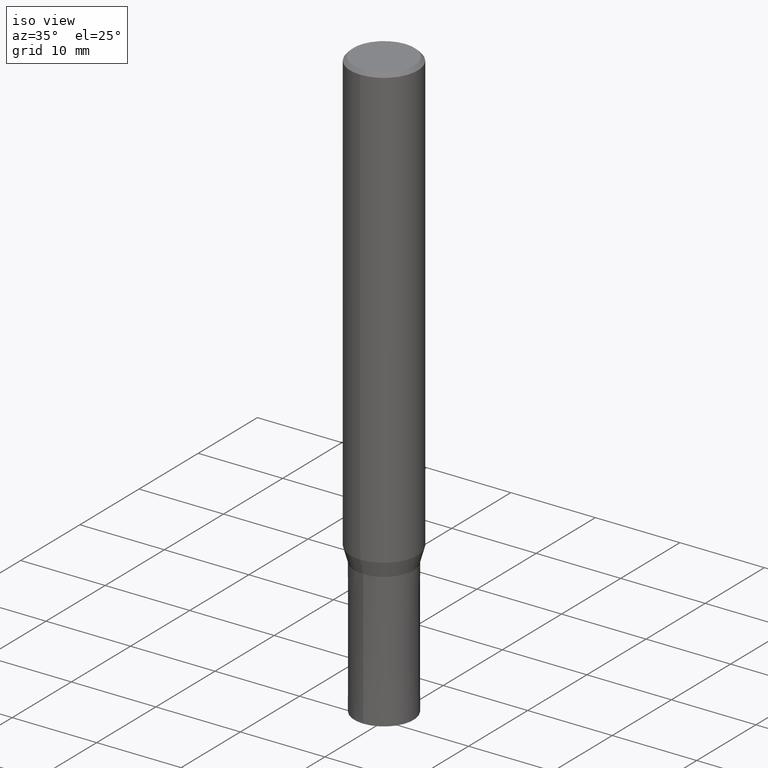
[diagram: clean part render]
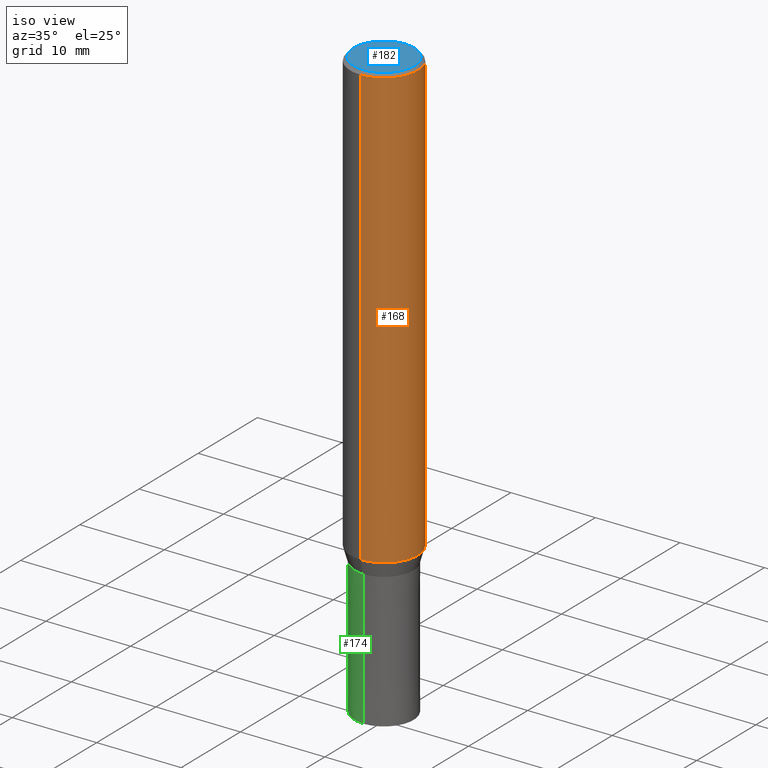
[diagram: same view with three faces highlighted in distinct colors, each labeled with its STEP entity id]
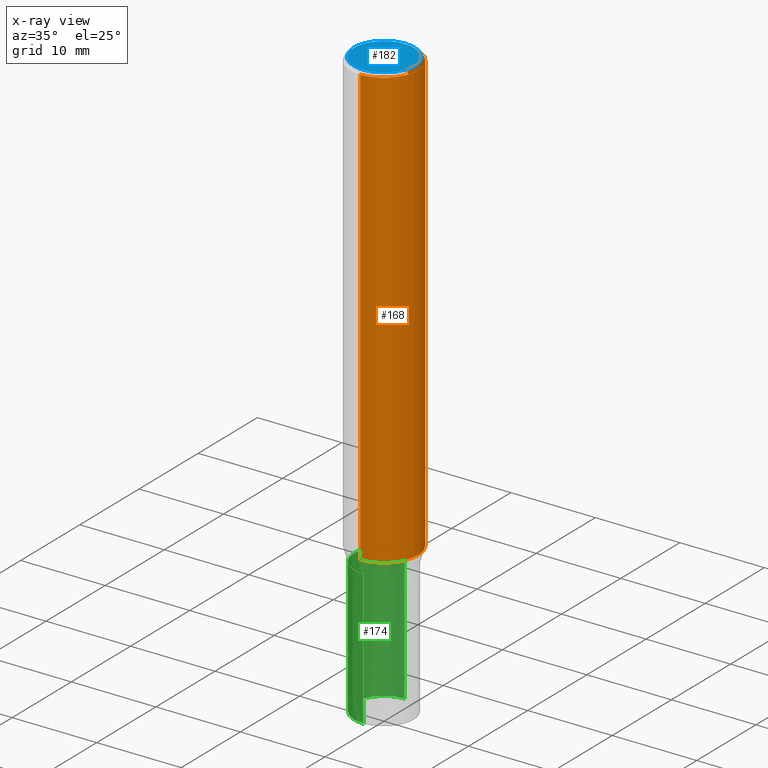
[diagram: x-ray of the same camera — body ghosted, the three highlighted faces saturated]
A machine part, iso view with three faces highlighted in distinct colors.
The next image is the same camera in x-ray (body ghosted, the three faces saturated) — at least one of them is partly hidden behind the body in this view.
Their STEP definitions:

[orange] entity #168 — the highlighted cylindrical surface (partial cylindrical patch) has radius 4 mm, axis along (-0, -0, 1).
#92=VERTEX_POINT('',#214);
#106=EDGE_CURVE('',#172,#120,#232,.T.);
#112=EDGE_CURVE('',#138,#172,#239,.T.);
#120=VERTEX_POINT('',#247);
#138=VERTEX_POINT('',#266);
#160=EDGE_CURVE('',#138,#92,#291,.T.);
#166=EDGE_CURVE('',#120,#92,#297,.T.);
#168=ADVANCED_FACE('',(#299),#300,.T.);
#172=VERTEX_POINT('',#304);
#214=CARTESIAN_POINT('',(4.89842541528951E-016,-4.0,-0.399999999999999));
#232=CIRCLE('',#365,4.0);
#239=LINE('',#374,#375);
#247=CARTESIAN_POINT('',(4.89842541528951E-016,-4.0,-52.256));
#266=CARTESIAN_POINT('',(0.0,4.0,-0.399999999999999));
#291=CIRCLE('',#442,4.0);
#297=LINE('',#450,#451);
#299=FACE_OUTER_BOUND('',#453,.T.);
#300=CYLINDRICAL_SURFACE('',#454,4.0);
#304=CARTESIAN_POINT('',(0.0,4.0,-52.256));
#365=AXIS2_PLACEMENT_3D('',#523,#524,#525);
#374=CARTESIAN_POINT('',(-4.89842541528951E-016,4.0,-26.328));
#375=VECTOR('',#535,1.0);
#442=AXIS2_PLACEMENT_3D('',#587,#588,#589);
#450=CARTESIAN_POINT('',(4.89842541528951E-016,-4.0,-26.328));
#451=VECTOR('',#593,1.0);
#453=EDGE_LOOP('',(#595,#596,#597,#598));
#454=AXIS2_PLACEMENT_3D('',#599,#600,#601);
#523=CARTESIAN_POINT('',(0.0,0.0,-52.256));
#524=DIRECTION('',(0.0,0.0,-1.0));
#525=DIRECTION('',(0.0,1.0,0.0));
#535=DIRECTION('',(0.0,0.0,-1.0));
#587=CARTESIAN_POINT('',(0.0,0.0,-0.399999999999999));
#588=DIRECTION('',(0.0,0.0,-1.0));
#589=DIRECTION('',(0.0,1.0,0.0));
#593=DIRECTION('',(-0.0,-0.0,1.0));
#595=ORIENTED_EDGE('',*,*,#112,.F.);
#596=ORIENTED_EDGE('',*,*,#160,.T.);
#597=ORIENTED_EDGE('',*,*,#166,.F.);
#598=ORIENTED_EDGE('',*,*,#106,.F.);
#599=CARTESIAN_POINT('',(0.0,0.0,-26.328));
#600=DIRECTION('',(-0.0,-0.0,1.0));
#601=DIRECTION('',(0.0,1.0,0.0));

[blue] entity #182 — the highlighted planar face has unit normal (-0, 0, 1).
#98=EDGE_CURVE('',#178,#162,#222,.T.);
#116=EDGE_CURVE('',#162,#178,#243,.T.);
#162=VERTEX_POINT('',#293);
#178=VERTEX_POINT('',#312);
#182=ADVANCED_FACE('',(#316),#317,.T.);
#222=CIRCLE('',#353,3.6);
#243=CIRCLE('',#380,3.6);
#293=CARTESIAN_POINT('',(4.40858287376056E-016,-3.6,0.0));
#312=CARTESIAN_POINT('',(0.0,3.6,0.0));
#316=FACE_OUTER_BOUND('',#472,.T.);
#317=PLANE('',#473);
#353=AXIS2_PLACEMENT_3D('',#501,#502,#503);
#380=AXIS2_PLACEMENT_3D('',#536,#537,#538);
#472=EDGE_LOOP('',(#618,#619));
#473=AXIS2_PLACEMENT_3D('',#620,#621,#622);
#501=CARTESIAN_POINT('',(0.0,0.0,0.0));
#502=DIRECTION('',(0.0,0.0,-1.0));
#503=DIRECTION('',(0.0,1.0,0.0));
#536=CARTESIAN_POINT('',(0.0,0.0,0.0));
#537=DIRECTION('',(0.0,0.0,-1.0));
#538=DIRECTION('',(0.0,1.0,0.0));
#618=ORIENTED_EDGE('',*,*,#98,.F.);
#619=ORIENTED_EDGE('',*,*,#116,.F.);
#620=CARTESIAN_POINT('',(0.0,1.8,0.0));
#621=DIRECTION('',(-0.0,0.0,1.0));
#622=DIRECTION('',(0.0,-1.0,0.0));

[green] entity #174 — the highlighted conical surface has half-angle 0 deg.
#114=VERTEX_POINT('',#241);
#126=EDGE_CURVE('',#114,#156,#253,.T.);
#142=EDGE_CURVE('',#180,#154,#270,.T.);
#148=EDGE_CURVE('',#114,#154,#277,.T.);
#154=VERTEX_POINT('',#285);
#156=VERTEX_POINT('',#287);
#158=EDGE_CURVE('',#156,#180,#289,.T.);
#174=ADVANCED_FACE('',(#306),#307,.T.);
#180=VERTEX_POINT('',#314);
#241=CARTESIAN_POINT('',(4.28612223837832E-016,-3.5,-70.0));
#253=LINE('',#395,#396);
#270=LINE('',#418,#419);
#277=CIRCLE('',#426,3.5);
#285=CARTESIAN_POINT('',(0.0,3.5,-70.0));
#287=CARTESIAN_POINT('',(4.28599977774294E-016,-3.4999,-54.0));
#289=CIRCLE('',#439,3.4999);
#306=FACE_OUTER_BOUND('',#462,.T.);
#307=CONICAL_SURFACE('',#463,3.49995,6.24999999993181E-006);
#314=CARTESIAN_POINT('',(0.0,3.4999,-54.0));
#395=CARTESIAN_POINT('',(4.28606100806063E-016,-3.49995,-62.0));
#396=VECTOR('',#546,1.0);
#418=CARTESIAN_POINT('',(-4.28606100806063E-016,3.49995,-62.0));
#419=VECTOR('',#557,1.0);
#426=AXIS2_PLACEMENT_3D('',#565,#566,#567);
#439=AXIS2_PLACEMENT_3D('',#584,#585,#586);
#462=EDGE_LOOP('',(#604,#605,#606,#607));
#463=AXIS2_PLACEMENT_3D('',#608,#609,#610);
#546=DIRECTION('',(-7.65378971125652E-022,6.24999999989112E-006,0.999999999980469));
#557=DIRECTION('',(-7.65378971125653E-022,6.24999999989112E-006,-0.999999999980469));
#565=CARTESIAN_POINT('',(0.0,0.0,-70.0));
#566=DIRECTION('',(0.0,0.0,-1.0));
#567=DIRECTION('',(0.0,1.0,0.0));
#584=CARTESIAN_POINT('',(0.0,0.0,-54.0));
#585=DIRECTION('',(0.0,0.0,-1.0));
#586=DIRECTION('',(0.0,1.0,0.0));
#604=ORIENTED_EDGE('',*,*,#142,.T.);
#605=ORIENTED_EDGE('',*,*,#148,.F.);
#606=ORIENTED_EDGE('',*,*,#126,.T.);
#607=ORIENTED_EDGE('',*,*,#158,.T.);
#608=CARTESIAN_POINT('',(0.0,0.0,-62.0));
#609=DIRECTION('',(0.0,-0.0,-1.0));
#610=DIRECTION('',(0.0,1.0,0.0));